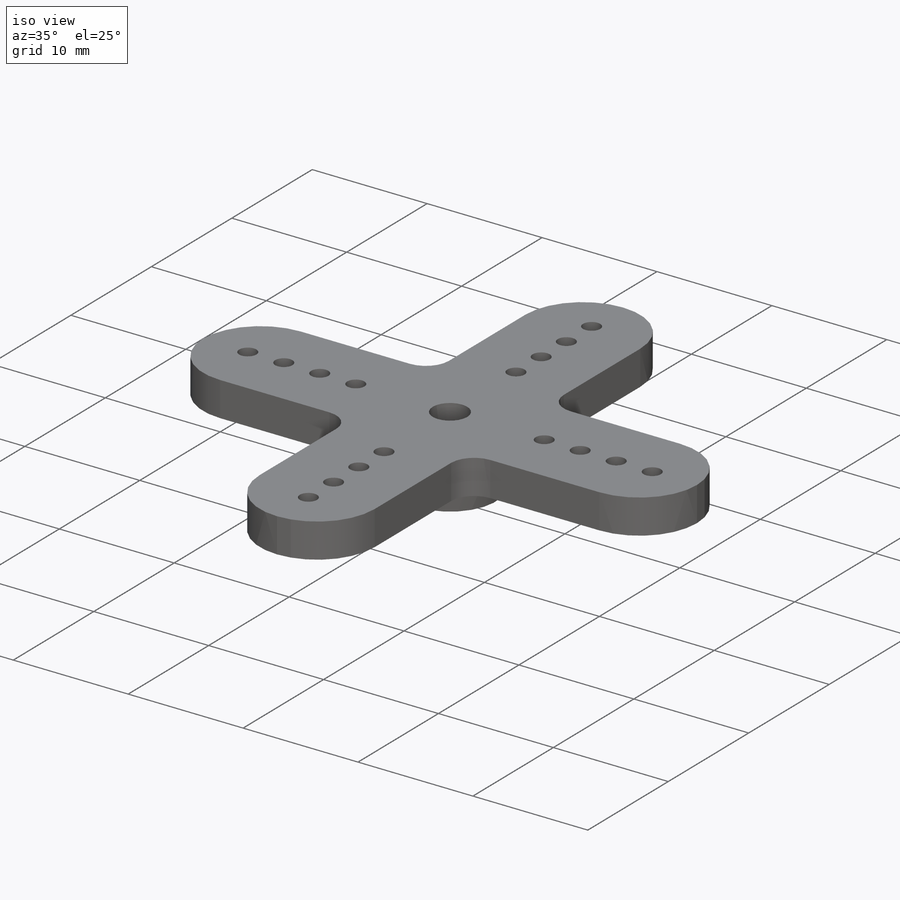
[diagram: iso view]
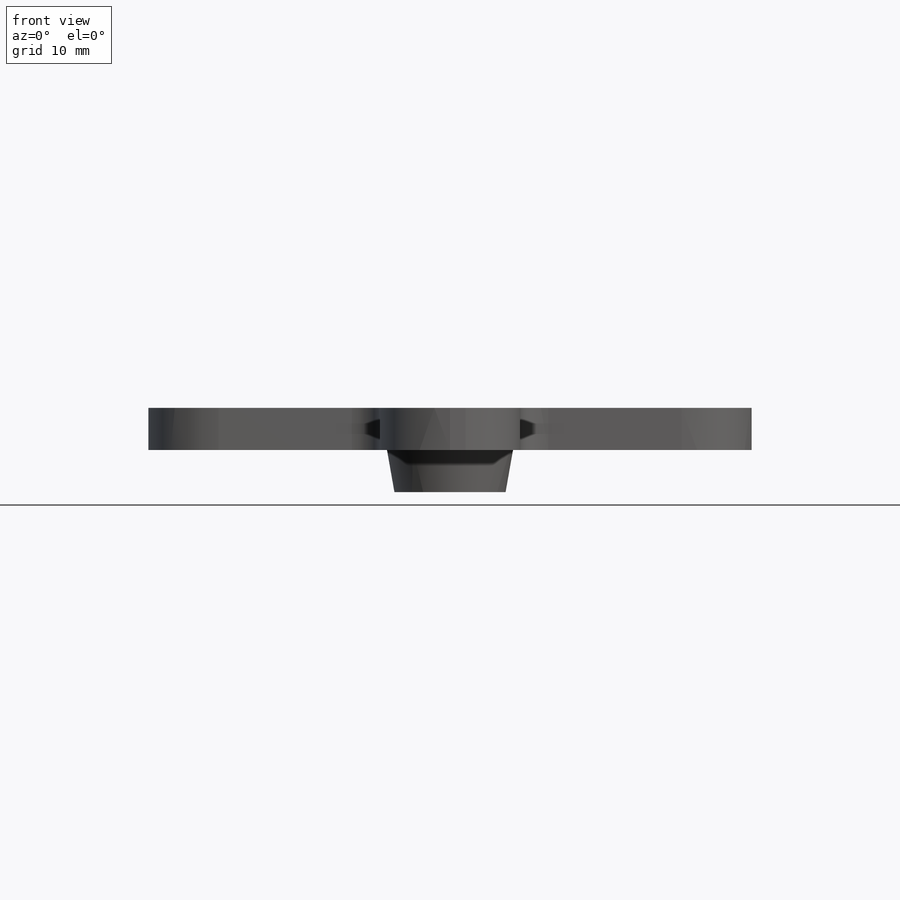
[diagram: front view]
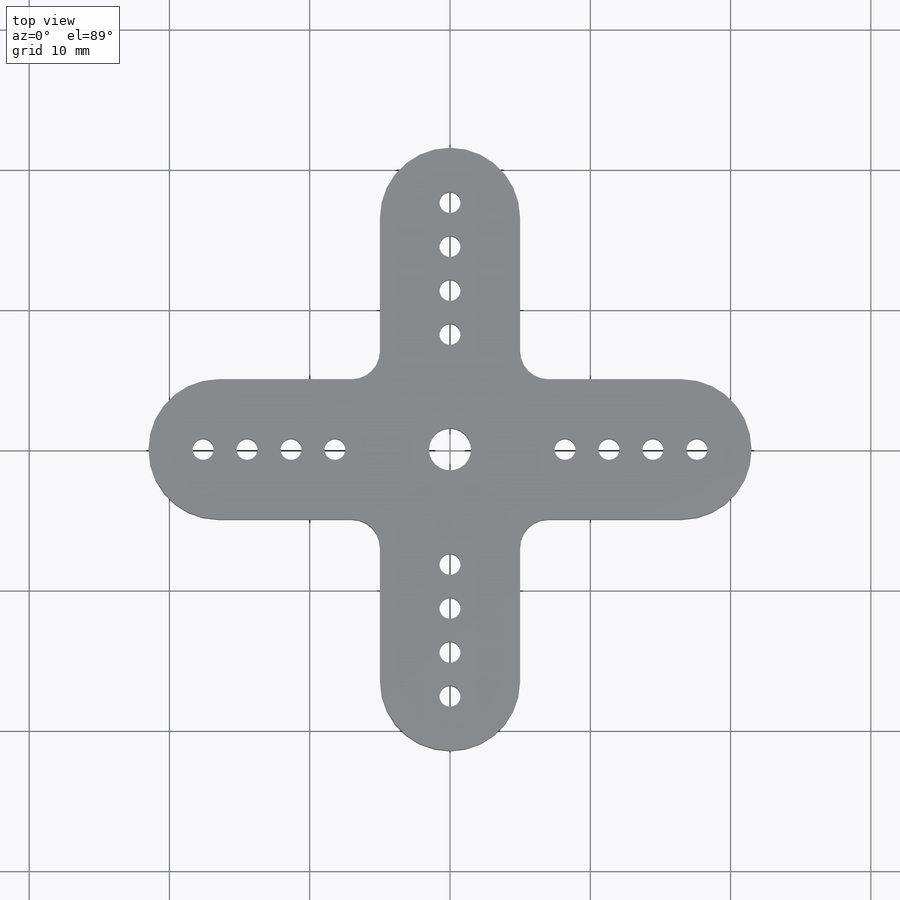
[diagram: top view]
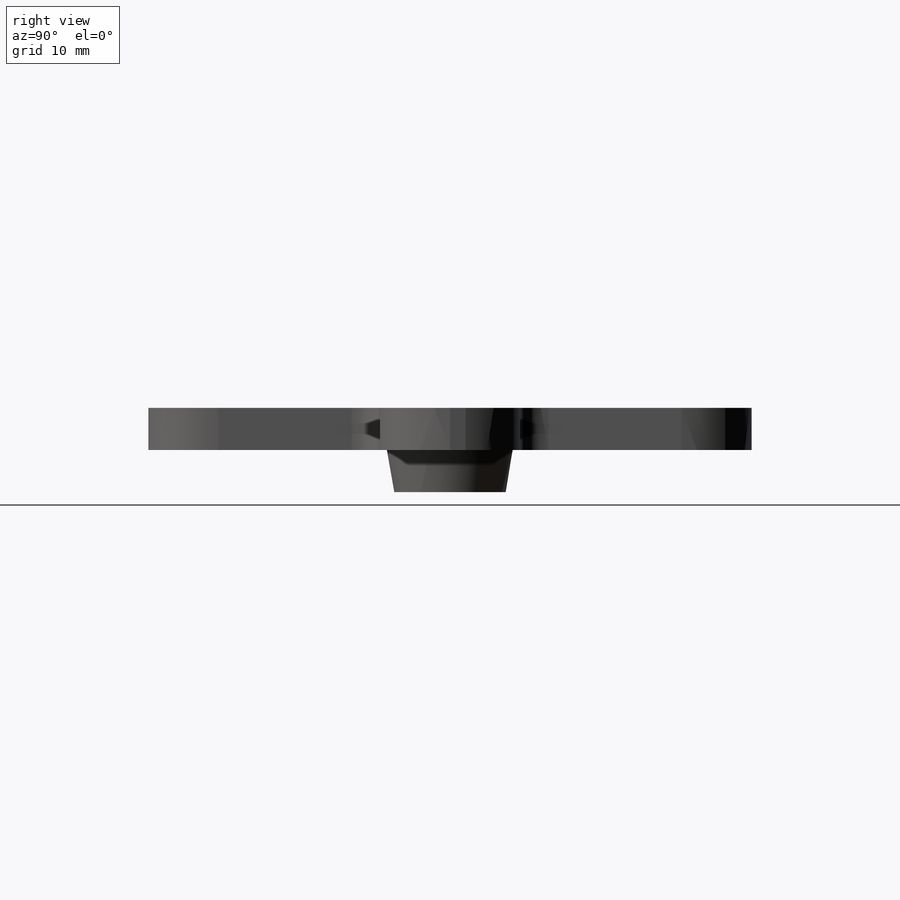
[diagram: right view]
SOLIDWORKS PART (.sldprt)
format: sldprt  version: not decoded by parser v0  size: 239,616 bytes
history: native  units: mm
features: sketch x5, cut_extrude x3, extrude x2, fillet x2, material x1, pattern_circular x1 (+12 scaffold rows collapsed)
feature tree (26):
  scaffold x12  (default folders/planes/origin — collapsed)
  material  "Material <not specified>"
  sketch  "Sketch1"  dims[D1=10.0mm D2=43.0mm]
  extrude  "Boss-Extrude1"  Depth=3mm
  fillet  "Fillet1"  Radius=2mm
  fillet  "Fillet2"  Radius=5mm
  sketch  "Sketch2"  dims[D1=9.0mm]
  extrude  "Boss-Extrude2"  Depth=3mm
  sketch  "Sketch3"  dims[D1=6.0mm]
  cut_extrude  "Cut-Extrude1"  Depth=3mm
  sketch  "Sketch4"  dims[D1=3.0mm]
  cut_extrude  "Cut-Extrude2"  [1 undecoded]
  sketch  "Sketch5"  dims[D2=1.5mm D1=9.4mm D3=8.2mm]
  cut_extrude  "Cut-Extrude3"  [1 undecoded]
  pattern_circular  "CirPattern1"  Count=4  [1 undecoded]
decode coverage: 11 of 13 modeling features carry decoded parameters
note: 3 parameter values undecoded
note: suppression state not decoded; provenance and decode notes live in map.json
